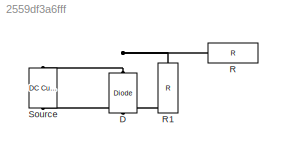
MODEL slx_2559df3a6fff
KIND model
CONFIG AbsTol = auto
CONFIG FixedStep = auto
CONFIG MaxStep = auto
CONFIG MinStep = auto
CONFIG RelTol = 1e-3
CONFIG SampleTimeConstraint = Unconstrained
CONFIG Solver = VariableStepAuto
CONFIG SolverMode = Auto
CONFIG SolverName = VariableStepAuto
CONFIG StartTime = 0.0
CONFIG StopTime = 10.0
BLOCK [Reference] D  REF=fl_lib/Electrical/Electrical Elements/Diode
  Ports = [0, 0, 0, 0, 0, 1, 1]
  SourceBlock = fl_lib/Electrical/Electrical Elements/Diode
  SourceType = Diode
BLOCK [Reference] R  REF=simrfV2elements/R
  Ports = [0, 0, 0, 0, 0, 1, 1]
  SourceBlock = simrfV2elements/R
  SourceType = Resistor
BLOCK [Reference] R1  REF=simrfV2elements/R
  Ports = [0, 0, 0, 0, 0, 1, 1]
  SourceBlock = simrfV2elements/R
  SourceType = Resistor
BLOCK [Reference] Source     REF=fl_lib/Electrical/Electrical Sources/DC Current Source
  Ports = [0, 0, 0, 0, 0, 1, 1]
  SourceBlock = fl_lib/Electrical/Electrical Sources/DC Current Source
  SourceType = DC Current Source
PNET net1: D:LConn1 -- R1:LConn1 -- R:LConn1 -- Source   :LConn1
PNET net2: D:RConn1 -- R1:RConn1 -- Source   :RConn1
note: PNET lines group multi-terminal physical nets as a canonical sorted terminal list (undirected conserving connections); 2-terminal nets keep the pairwise PLINE form
